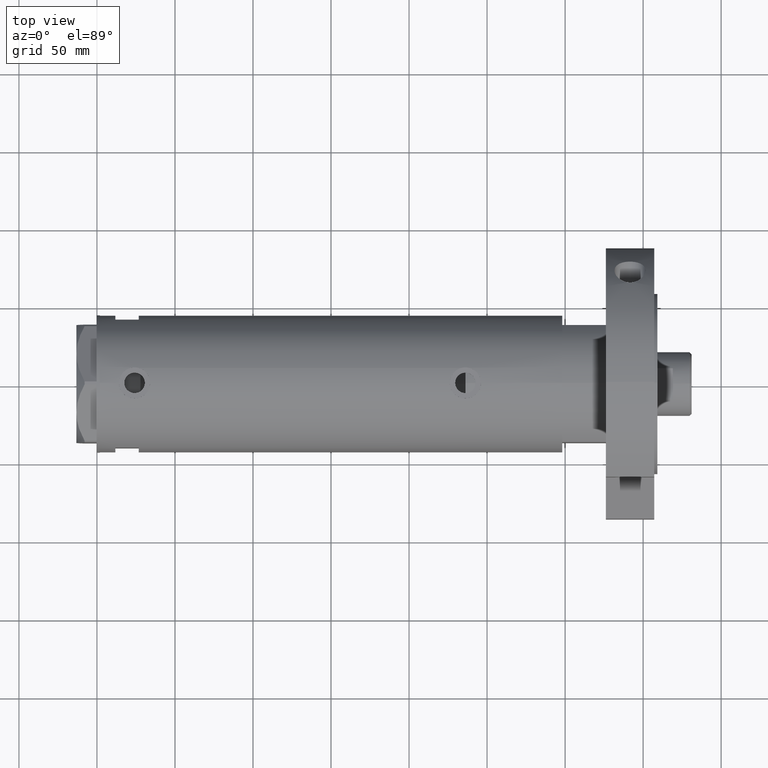
[diagram: clean part render]
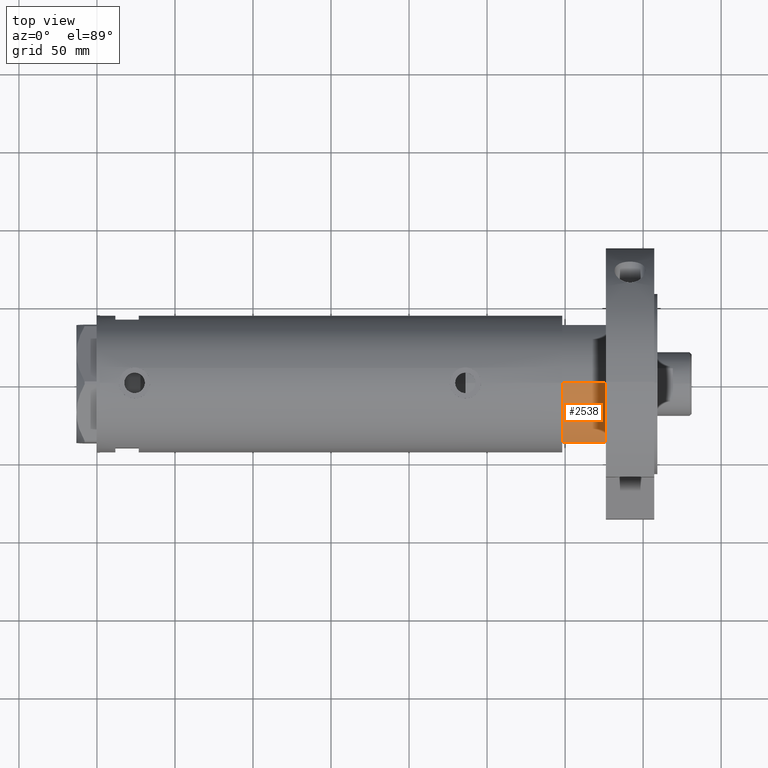
[diagram: same view with one face highlighted and labeled with its STEP entity id]
A machine part, top view. The second image highlights one B-rep face of the part: STEP entity #2538.
In plain terms, the highlighted cylindrical surface (partial cylindrical patch) has radius 44 mm, axis along (-1, -0, 0).
Its self-contained STEP definition (entity closure, byte-faithful):
#375 = LINE ( 'NONE', #2650, #4711 ) ;
#406 = DIRECTION ( 'NONE',  ( 1.000000000000000000, 0.000000000000000000, 0.000000000000000000 ) ) ;
#821 = ORIENTED_EDGE ( 'NONE', *, *, #4262, .F. ) ;
#943 = CIRCLE ( 'NONE', #6940, 44.00000000000000000 ) ;
#1644 = ORIENTED_EDGE ( 'NONE', *, *, #4202, .T. ) ;
#2047 = FACE_OUTER_BOUND ( 'NONE', #4133, .T. ) ;
#2078 = EDGE_CURVE ( 'NONE', #6103, #3125, #375, .T. ) ;
#2234 = CARTESIAN_POINT ( 'NONE',  ( -23.01629857296780557, -37.50000000000000000, 0.000000000000000000 ) ) ;
#2394 = CARTESIAN_POINT ( 'NONE',  ( 0.000000000000000000, 0.000000000000000000, 0.000000000000000000 ) ) ;
#2444 = EDGE_CURVE ( 'NONE', #3125, #4551, #943, .T. ) ;
#2538 = ADVANCED_FACE ( 'NONE', ( #2047 ), #2657, .T. ) ;
#2588 = VERTEX_POINT ( 'NONE', #5241 ) ;
#2650 = CARTESIAN_POINT ( 'NONE',  ( -44.00000000000000000, 0.000000000000000000, 27.89999999999999858 ) ) ;
#2657 = CYLINDRICAL_SURFACE ( 'NONE', #3010, 44.00000000000000000 ) ;
#2789 = AXIS2_PLACEMENT_3D ( 'NONE', #3430, #5285, #4615 ) ;
#3010 = AXIS2_PLACEMENT_3D ( 'NONE', #6716, #3801, #7344 ) ;
#3125 = VERTEX_POINT ( 'NONE', #5509 ) ;
#3360 = ORIENTED_EDGE ( 'NONE', *, *, #2078, .T. ) ;
#3430 = CARTESIAN_POINT ( 'NONE',  ( 0.000000000000000000, 0.000000000000000000, 27.89999999999999858 ) ) ;
#3801 = DIRECTION ( 'NONE',  ( -0.000000000000000000, -0.000000000000000000, -1.000000000000000000 ) ) ;
#4133 = EDGE_LOOP ( 'NONE', ( #821, #3360, #5618, #1644 ) ) ;
#4202 = EDGE_CURVE ( 'NONE', #4551, #2588, #7075, .T. ) ;
#4262 = EDGE_CURVE ( 'NONE', #6103, #2588, #7080, .T. ) ;
#4551 = VERTEX_POINT ( 'NONE', #2234 ) ;
#4577 = DIRECTION ( 'NONE',  ( 0.000000000000000000, 0.000000000000000000, 1.000000000000000000 ) ) ;
#4615 = DIRECTION ( 'NONE',  ( 1.000000000000000000, 0.000000000000000000, 0.000000000000000000 ) ) ;
#4711 = VECTOR ( 'NONE', #4964, 1000.000000000000000 ) ;
#4721 = CARTESIAN_POINT ( 'NONE',  ( -23.01629857296780557, -37.50000000000000000, 0.000000000000000000 ) ) ;
#4964 = DIRECTION ( 'NONE',  ( -0.000000000000000000, -0.000000000000000000, -1.000000000000000000 ) ) ;
#5241 = CARTESIAN_POINT ( 'NONE',  ( -23.01629857296780557, -37.50000000000000000, 27.89999999999999858 ) ) ;
#5251 = DIRECTION ( 'NONE',  ( -0.000000000000000000, -0.000000000000000000, 1.000000000000000000 ) ) ;
#5285 = DIRECTION ( 'NONE',  ( 0.000000000000000000, 0.000000000000000000, 1.000000000000000000 ) ) ;
#5509 = CARTESIAN_POINT ( 'NONE',  ( -44.00000000000000000, 0.000000000000000000, 0.000000000000000000 ) ) ;
#5618 = ORIENTED_EDGE ( 'NONE', *, *, #2444, .T. ) ;
#5712 = CARTESIAN_POINT ( 'NONE',  ( -44.00000000000000000, 0.000000000000000000, 27.89999999999999858 ) ) ;
#6103 = VERTEX_POINT ( 'NONE', #5712 ) ;
#6716 = CARTESIAN_POINT ( 'NONE',  ( 0.000000000000000000, 0.000000000000000000, 27.89999999999999858 ) ) ;
#6940 = AXIS2_PLACEMENT_3D ( 'NONE', #2394, #4577, #406 ) ;
#7075 = LINE ( 'NONE', #4721, #7210 ) ;
#7080 = CIRCLE ( 'NONE', #2789, 44.00000000000000000 ) ;
#7210 = VECTOR ( 'NONE', #5251, 1000.000000000000000 ) ;
#7344 = DIRECTION ( 'NONE',  ( -1.000000000000000000, 0.000000000000000000, 0.000000000000000000 ) ) ;